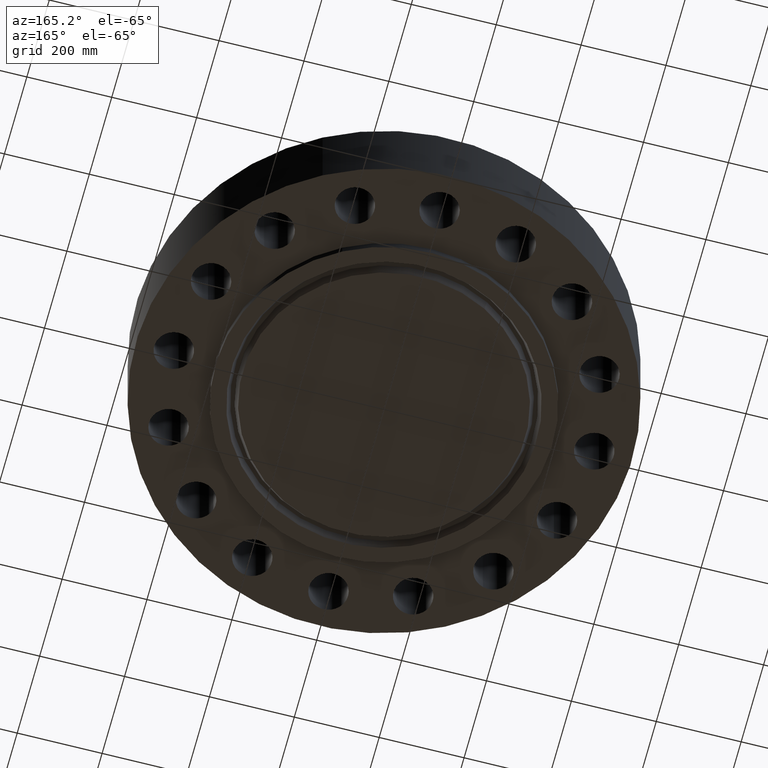
[diagram: clean part render]
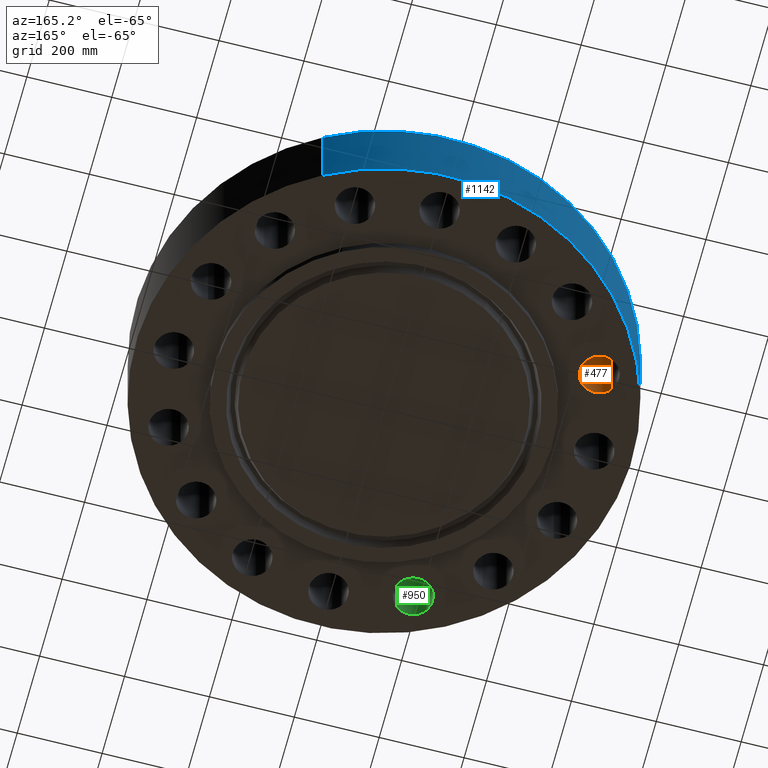
[diagram: same view with three faces highlighted in distinct colors, each labeled with its STEP entity id]
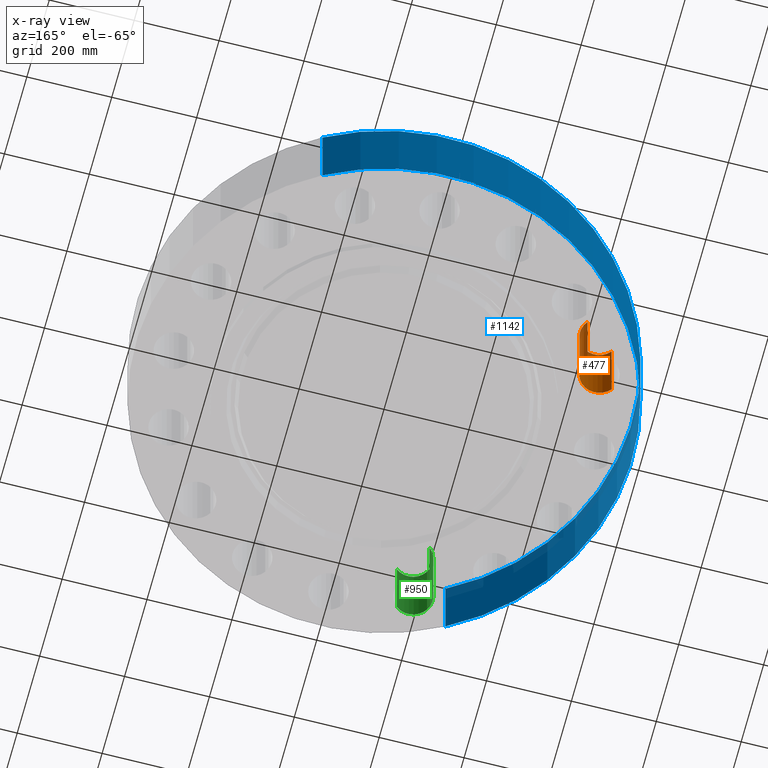
[diagram: x-ray of the same camera — body ghosted, the three highlighted faces saturated]
A machine part, auxiliary view with three faces highlighted in distinct colors.
The next image is the same camera in x-ray (body ghosted, the three faces saturated) — at least one of them is partly hidden behind the body in this view.
Their STEP definitions:

[orange] entity #477 — the highlighted cylindrical surface (edge-blend (fillet) strip) has radius 46.101 mm, axis along (0, 0, -1).
#441=AXIS2_PLACEMENT_3D('Cylinder Axis2P3D',#438,#439,#440) ;
#454=AXIS2_PLACEMENT_3D('Circle Axis2P3D',#452,#453,$) ;
#468=AXIS2_PLACEMENT_3D('Circle Axis2P3D',#466,#467,$) ;
#438=CARTESIAN_POINT('Axis2P3D Location',(-18.015650884,7.46232693115,7.99606299216)) ;
#443=CARTESIAN_POINT('Line Origine',(-16.6021874188,8.60089885792,4.00000000002)) ;
#447=CARTESIAN_POINT('Vertex',(-16.6021874188,8.60089885792,-6.71378962923E-015)) ;
#449=CARTESIAN_POINT('Vertex',(-16.6021874188,8.60089885792,8.00000000003)) ;
#452=CARTESIAN_POINT('Axis2P3D Location',(-18.015650884,7.46232693115,-6.71378962923E-015)) ;
#456=CARTESIAN_POINT('Vertex',(-19.4291143493,6.32375500438,0.)) ;
#459=CARTESIAN_POINT('Line Origine',(-19.4291143493,6.32375500438,4.00000000002)) ;
#463=CARTESIAN_POINT('Vertex',(-19.4291143493,6.32375500438,8.00000000003)) ;
#466=CARTESIAN_POINT('Axis2P3D Location',(-18.015650884,7.46232693115,8.00000000003)) ;
#439=DIRECTION('Axis2P3D Direction',(0.,0.,-0.0393700787402)) ;
#440=DIRECTION('Axis2P3D XDirection',(-0.030660147616,-0.0246973368639,-0.)) ;
#444=DIRECTION('Vector Direction',(0.,0.,-0.0393700787402)) ;
#453=DIRECTION('Axis2P3D Direction',(0.,0.,-0.0393700787402)) ;
#460=DIRECTION('Vector Direction',(0.,0.,-0.0393700787402)) ;
#467=DIRECTION('Axis2P3D Direction',(0.,0.,-0.0393700787402)) ;
#445=VECTOR('Line Direction',#444,0.0393700787402) ;
#461=VECTOR('Line Direction',#460,0.0393700787402) ;
#472=ORIENTED_EDGE('',*,*,#451,.F.) ;
#473=ORIENTED_EDGE('',*,*,#458,.T.) ;
#474=ORIENTED_EDGE('',*,*,#465,.T.) ;
#475=ORIENTED_EDGE('',*,*,#470,.F.) ;
#477=ADVANCED_FACE('PartBody',(#476),#442,.F.) ;
#455=CIRCLE('generated circle',#454,1.81500000001) ;
#469=CIRCLE('generated circle',#468,1.81500000001) ;
#442=CYLINDRICAL_SURFACE('generated cylinder',#441,1.81500000001) ;
#451=EDGE_CURVE('',#448,#450,#446,.F.) ;
#458=EDGE_CURVE('',#448,#457,#455,.T.) ;
#465=EDGE_CURVE('',#457,#464,#462,.F.) ;
#470=EDGE_CURVE('',#450,#464,#469,.T.) ;
#471=EDGE_LOOP('',(#472,#473,#474,#475)) ;
#476=FACE_OUTER_BOUND('',#471,.T.) ;
#446=LINE('Line',#443,#445) ;
#462=LINE('Line',#459,#461) ;
#448=VERTEX_POINT('',#447) ;
#450=VERTEX_POINT('',#449) ;
#457=VERTEX_POINT('',#456) ;
#464=VERTEX_POINT('',#463) ;

[blue] entity #1142 — the highlighted cylindrical surface (partial cylindrical patch) has radius 584.2 mm, axis along (0, 0, -1).
#958=AXIS2_PLACEMENT_3D('Circle Axis2P3D',#956,#957,$) ;
#1103=AXIS2_PLACEMENT_3D('Cylinder Axis2P3D',#1100,#1101,#1102) ;
#1133=AXIS2_PLACEMENT_3D('Circle Axis2P3D',#1131,#1132,$) ;
#956=CARTESIAN_POINT('Axis2P3D Location',(0.,0.,0.)) ;
#960=CARTESIAN_POINT('Vertex',(-11.0267873879,-20.1843989236,4.47585975282E-015)) ;
#962=CARTESIAN_POINT('Vertex',(11.0267873879,20.1843989236,4.47585975282E-015)) ;
#1100=CARTESIAN_POINT('Axis2P3D Location',(0.,0.,3.59350000001)) ;
#1105=CARTESIAN_POINT('Line Origine',(11.0267873879,20.1843989236,4.00000000002)) ;
#1109=CARTESIAN_POINT('Vertex',(11.0267873879,20.1843989236,8.00000000003)) ;
#1116=CARTESIAN_POINT('Vertex',(-11.0267873879,-20.1843989236,8.00000000003)) ;
#1119=CARTESIAN_POINT('Line Origine',(-11.0267873879,-20.1843989236,4.00000000002)) ;
#1131=CARTESIAN_POINT('Axis2P3D Location',(0.,0.,8.00000000003)) ;
#957=DIRECTION('Axis2P3D Direction',(0.,0.,-0.0393700787402)) ;
#1101=DIRECTION('Axis2P3D Direction',(0.,0.,-0.0393700787402)) ;
#1102=DIRECTION('Axis2P3D XDirection',(-0.0188750212049,-0.0345504945626,0.)) ;
#1106=DIRECTION('Vector Direction',(0.,0.,-0.0393700787402)) ;
#1120=DIRECTION('Vector Direction',(0.,0.,-0.0393700787402)) ;
#1132=DIRECTION('Axis2P3D Direction',(0.,0.,-0.0393700787402)) ;
#1107=VECTOR('Line Direction',#1106,0.0393700787402) ;
#1121=VECTOR('Line Direction',#1120,0.0393700787402) ;
#1137=ORIENTED_EDGE('',*,*,#964,.F.) ;
#1138=ORIENTED_EDGE('',*,*,#1123,.T.) ;
#1139=ORIENTED_EDGE('',*,*,#1135,.T.) ;
#1140=ORIENTED_EDGE('',*,*,#1111,.F.) ;
#1142=ADVANCED_FACE('PartBody',(#1141),#1104,.T.) ;
#959=CIRCLE('generated circle',#958,23.0000000001) ;
#1134=CIRCLE('generated circle',#1133,23.0000000001) ;
#1104=CYLINDRICAL_SURFACE('generated cylinder',#1103,23.0000000001) ;
#964=EDGE_CURVE('',#961,#963,#959,.T.) ;
#1111=EDGE_CURVE('',#963,#1110,#1108,.F.) ;
#1123=EDGE_CURVE('',#961,#1117,#1122,.F.) ;
#1135=EDGE_CURVE('',#1117,#1110,#1134,.T.) ;
#1136=EDGE_LOOP('',(#1137,#1138,#1139,#1140)) ;
#1141=FACE_OUTER_BOUND('',#1136,.T.) ;
#1108=LINE('Line',#1105,#1107) ;
#1122=LINE('Line',#1119,#1121) ;
#961=VERTEX_POINT('',#960) ;
#963=VERTEX_POINT('',#962) ;
#1110=VERTEX_POINT('',#1109) ;
#1117=VERTEX_POINT('',#1116) ;

[green] entity #950 — the highlighted cylindrical surface (edge-blend (fillet) strip) has radius 46.101 mm, axis along (0, 0, -1).
#897=AXIS2_PLACEMENT_3D('Cylinder Axis2P3D',#894,#895,#896) ;
#936=AXIS2_PLACEMENT_3D('Circle Axis2P3D',#934,#935,$) ;
#941=AXIS2_PLACEMENT_3D('Circle Axis2P3D',#939,#940,$) ;
#894=CARTESIAN_POINT('Axis2P3D Location',(-7.46232693115,-18.015650884,7.99606299216)) ;
#899=CARTESIAN_POINT('Line Origine',(-8.60089885792,-16.6021874188,4.00000000002)) ;
#903=CARTESIAN_POINT('Vertex',(-8.60089885792,-16.6021874188,0.)) ;
#905=CARTESIAN_POINT('Vertex',(-8.60089885792,-16.6021874188,8.00000000003)) ;
#912=CARTESIAN_POINT('Vertex',(-6.32375500438,-19.4291143493,0.)) ;
#915=CARTESIAN_POINT('Line Origine',(-6.32375500438,-19.4291143493,4.00000000002)) ;
#919=CARTESIAN_POINT('Vertex',(-6.32375500438,-19.4291143493,8.00000000003)) ;
#934=CARTESIAN_POINT('Axis2P3D Location',(-7.46232693115,-18.015650884,0.)) ;
#939=CARTESIAN_POINT('Axis2P3D Location',(-7.46232693115,-18.015650884,8.00000000003)) ;
#895=DIRECTION('Axis2P3D Direction',(0.,0.,-0.0393700787402)) ;
#896=DIRECTION('Axis2P3D XDirection',(0.0246973368639,-0.030660147616,-0.)) ;
#900=DIRECTION('Vector Direction',(0.,0.,-0.0393700787402)) ;
#916=DIRECTION('Vector Direction',(0.,0.,-0.0393700787402)) ;
#935=DIRECTION('Axis2P3D Direction',(0.,0.,-0.0393700787402)) ;
#940=DIRECTION('Axis2P3D Direction',(0.,0.,-0.0393700787402)) ;
#901=VECTOR('Line Direction',#900,0.0393700787402) ;
#917=VECTOR('Line Direction',#916,0.0393700787402) ;
#945=ORIENTED_EDGE('',*,*,#921,.F.) ;
#946=ORIENTED_EDGE('',*,*,#938,.T.) ;
#947=ORIENTED_EDGE('',*,*,#907,.T.) ;
#948=ORIENTED_EDGE('',*,*,#943,.F.) ;
#950=ADVANCED_FACE('PartBody',(#949),#898,.F.) ;
#937=CIRCLE('generated circle',#936,1.81500000001) ;
#942=CIRCLE('generated circle',#941,1.81500000001) ;
#898=CYLINDRICAL_SURFACE('generated cylinder',#897,1.81500000001) ;
#907=EDGE_CURVE('',#904,#906,#902,.F.) ;
#921=EDGE_CURVE('',#913,#920,#918,.F.) ;
#938=EDGE_CURVE('',#913,#904,#937,.T.) ;
#943=EDGE_CURVE('',#920,#906,#942,.T.) ;
#944=EDGE_LOOP('',(#945,#946,#947,#948)) ;
#949=FACE_OUTER_BOUND('',#944,.T.) ;
#902=LINE('Line',#899,#901) ;
#918=LINE('Line',#915,#917) ;
#904=VERTEX_POINT('',#903) ;
#906=VERTEX_POINT('',#905) ;
#913=VERTEX_POINT('',#912) ;
#920=VERTEX_POINT('',#919) ;